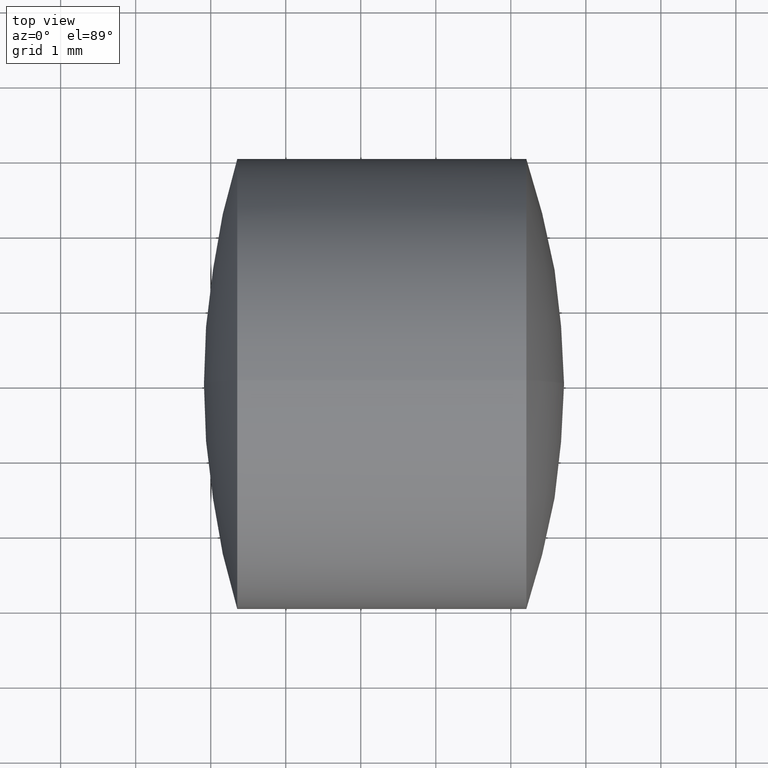
[diagram: clean part render]
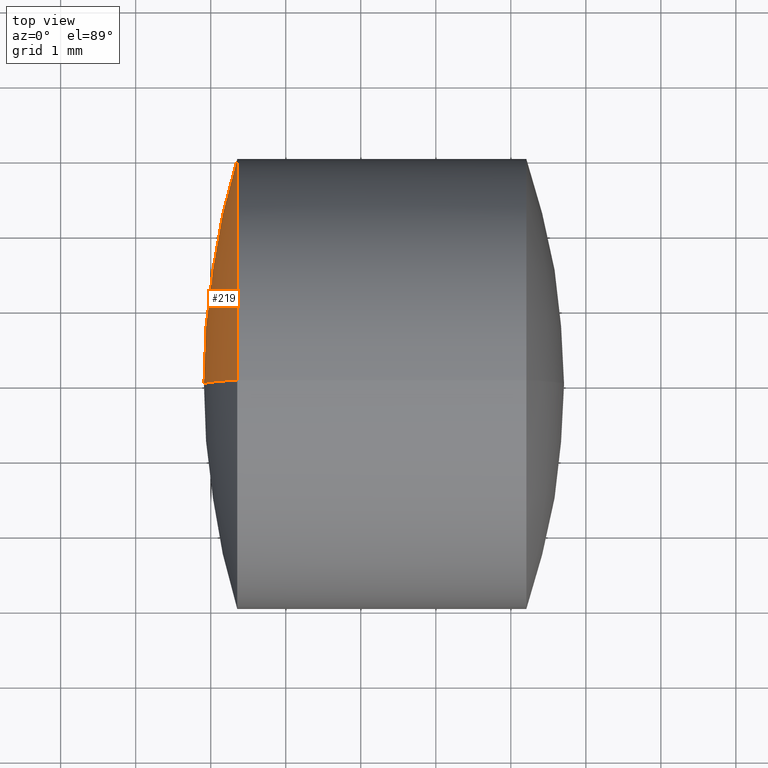
[diagram: same view with one face highlighted and labeled with its STEP entity id]
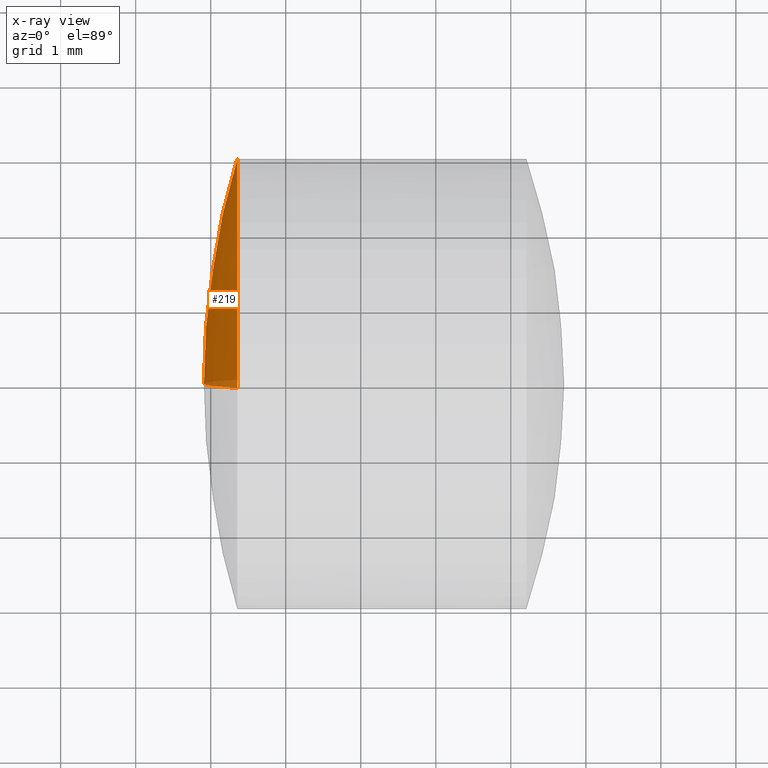
[diagram: x-ray of the same camera — body ghosted, the highlighted face saturated]
A machine part, top view. The second image highlights one B-rep face of the part: STEP entity #219.
The next image is the same camera in x-ray: the body ghosted, the highlighted face saturated — about 3% of this face is hidden behind the body in this view.
In plain terms, the highlighted spherical surface has radius 10.35 mm.
Its self-contained STEP definition (entity closure, byte-faithful):
#4 = AXIS2_PLACEMENT_3D ( 'NONE', #187, #258, #317 ) ;
#9 = VERTEX_POINT ( 'NONE', #88 ) ;
#12 = CIRCLE ( 'NONE', #4, 3.000000000000000000 ) ;
#39 = AXIS2_PLACEMENT_3D ( 'NONE', #239, #260, #316 ) ;
#51 = AXIS2_PLACEMENT_3D ( 'NONE', #290, #341, #293 ) ;
#53 = EDGE_CURVE ( 'NONE', #314, #9, #106, .T. ) ;
#60 = FACE_OUTER_BOUND ( 'NONE', #334, .T. ) ;
#85 = AXIS2_PLACEMENT_3D ( 'NONE', #294, #135, #118 ) ;
#88 = CARTESIAN_POINT ( 'NONE',  ( -0.09040778283851344500, 0.0000000000000000000, -6.167229071329056100E-016 ) ) ;
#96 = CIRCLE ( 'NONE', #51, 10.35000000000000100 ) ;
#102 = CARTESIAN_POINT ( 'NONE',  ( 0.3539120285020531100, -3.673940397442060400E-016, 3.000000000000000000 ) ) ;
#106 = CIRCLE ( 'NONE', #39, 10.35000000000000100 ) ;
#118 = DIRECTION ( 'NONE',  ( 0.0000000000000000000, 0.0000000000000000000, -1.000000000000000000 ) ) ;
#135 = DIRECTION ( 'NONE',  ( -0.0000000000000000000, -1.000000000000000000, -0.0000000000000000000 ) ) ;
#154 = ORIENTED_EDGE ( 'NONE', *, *, #212, .T. ) ;
#173 = SPHERICAL_SURFACE ( 'NONE', #85, 10.35000000000000100 ) ;
#187 = CARTESIAN_POINT ( 'NONE',  ( 0.3539120285020534400, 0.0000000000000000000, 0.0000000000000000000 ) ) ;
#188 = CARTESIAN_POINT ( 'NONE',  ( 0.3539120285020531100, 0.0000000000000000000, -3.000000000000000000 ) ) ;
#190 = EDGE_CURVE ( 'NONE', #216, #9, #96, .T. ) ;
#211 = ORIENTED_EDGE ( 'NONE', *, *, #190, .T. ) ;
#212 = EDGE_CURVE ( 'NONE', #314, #216, #12, .T. ) ;
#216 = VERTEX_POINT ( 'NONE', #188 ) ;
#219 = ADVANCED_FACE ( 'NONE', ( #60 ), #173, .T. ) ;
#239 = CARTESIAN_POINT ( 'NONE',  ( 10.25959221716148800, 0.0000000000000000000, 1.703181142584977900E-017 ) ) ;
#258 = DIRECTION ( 'NONE',  ( -1.000000000000000000, -0.0000000000000000000, -0.0000000000000000000 ) ) ;
#260 = DIRECTION ( 'NONE',  ( 0.0000000000000000000, -1.000000000000000000, -1.224646799147353200E-016 ) ) ;
#287 = ORIENTED_EDGE ( 'NONE', *, *, #53, .F. ) ;
#290 = CARTESIAN_POINT ( 'NONE',  ( 10.25959221716148800, 0.0000000000000000000, 1.703181142584977900E-017 ) ) ;
#293 = DIRECTION ( 'NONE',  ( 0.0000000000000000000, 0.0000000000000000000, 1.000000000000000000 ) ) ;
#294 = CARTESIAN_POINT ( 'NONE',  ( 10.25959221716148800, 0.0000000000000000000, 1.703181142584977900E-017 ) ) ;
#314 = VERTEX_POINT ( 'NONE', #102 ) ;
#316 = DIRECTION ( 'NONE',  ( 0.0000000000000000000, 1.224646799147353200E-016, -1.000000000000000000 ) ) ;
#317 = DIRECTION ( 'NONE',  ( 0.0000000000000000000, 0.0000000000000000000, 1.000000000000000000 ) ) ;
#334 = EDGE_LOOP ( 'NONE', ( #287, #154, #211 ) ) ;
#341 = DIRECTION ( 'NONE',  ( 0.0000000000000000000, 1.000000000000000000, -0.0000000000000000000 ) ) ;